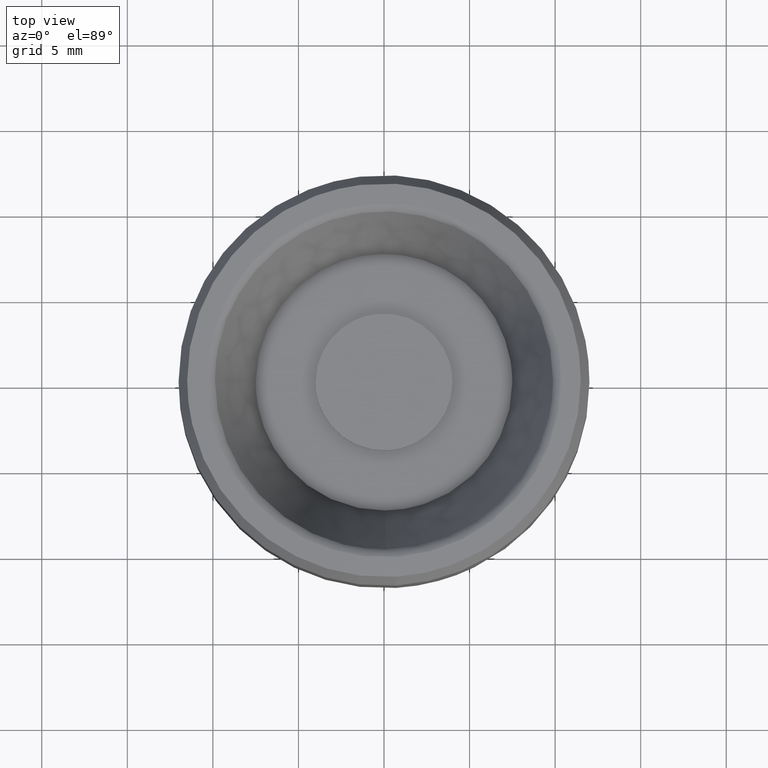
[diagram: clean part render]
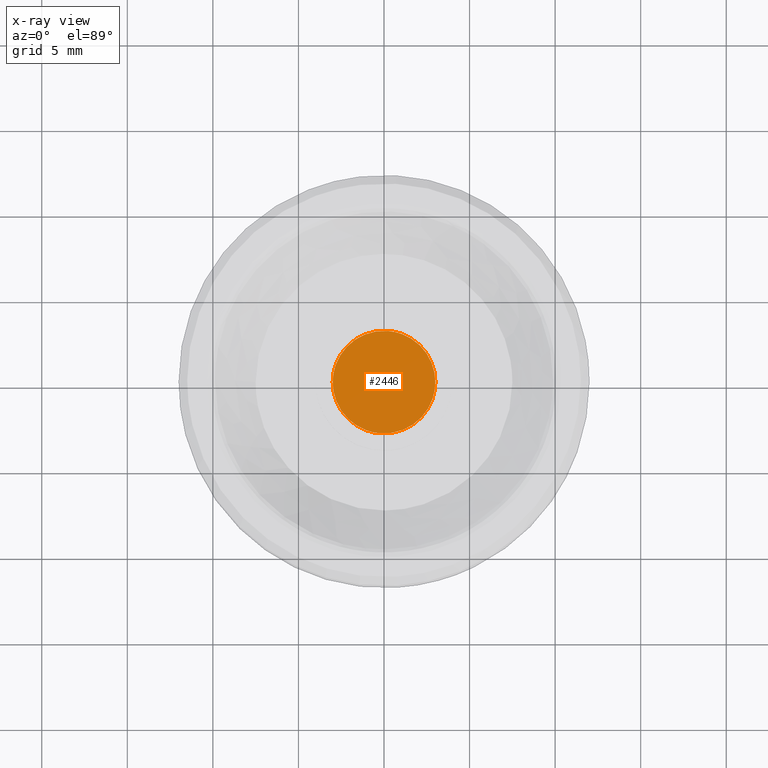
[diagram: x-ray — body ghosted, one internal face saturated and labeled with its STEP entity id]
A machine part, top view, then the same camera in x-ray: the body is ghosted and one INTERNAL B-rep face — a face not visible from any outside direction — is saturated and labeled: STEP entity #2446.
In plain terms, the highlighted face is a freeform B-spline surface patch.
Its self-contained STEP definition (entity closure, byte-faithful):
#1065=CARTESIAN_POINT('',(-3.0,0.0,9.500000000000000));
#1066=VERTEX_POINT('',#1065);
#1067=CARTESIAN_POINT('',(-0.235376409092394,-2.990752070306396,9.500000000000000));
#1068=VERTEX_POINT('',#1067);
#1069=CARTESIAN_POINT('',(-3.0,0.0,9.500000000000000));
#1070=CARTESIAN_POINT('',(-3.0,-2.773173108428491,9.500000000000000));
#1071=CARTESIAN_POINT('',(-0.235376409092394,-2.990752070306395,9.500000000000000));
#1079=(BOUNDED_CURVE()B_SPLINE_CURVE(2,(#1069,#1070,#1071),.UNSPECIFIED.,.F.,.U.)B_SPLINE_CURVE_WITH_KNOTS((3,3),(0.0,0.236331401293964),.UNSPECIFIED.)CURVE()GEOMETRIC_REPRESENTATION_ITEM()RATIONAL_B_SPLINE_CURVE((1.0,0.723120540673268,0.969723566244151))REPRESENTATION_ITEM(''));
#1080=EDGE_CURVE('',#1066,#1068,#1079,.T.);
#1121=CARTESIAN_POINT('',(0.235376409092394,2.990752070306396,9.500000000000000));
#1122=VERTEX_POINT('',#1121);
#1128=CARTESIAN_POINT('',(0.235376409092394,2.990752070306395,9.500000000000000));
#1129=CARTESIAN_POINT('',(0.117869438856954,3.000000000000000,9.500000000000000));
#1130=CARTESIAN_POINT('',(0.0,3.0,9.500000000000000));
#1131=CARTESIAN_POINT('',(-3.0,3.0,9.500000000000000));
#1132=CARTESIAN_POINT('',(-3.0,0.0,9.500000000000000));
#1140=(BOUNDED_CURVE()B_SPLINE_CURVE(2,(#1128,#1129,#1130,#1131,#1132),.UNSPECIFIED.,.F.,.U.)B_SPLINE_CURVE_WITH_KNOTS((3,2,3),(0.736331401293965,0.750000000000000,1.0),.UNSPECIFIED.)CURVE()GEOMETRIC_REPRESENTATION_ITEM()RATIONAL_B_SPLINE_CURVE((0.969723566244151,0.983986240513280,1.0,0.707106781186548,1.0))REPRESENTATION_ITEM(''));
#1141=EDGE_CURVE('',#1122,#1066,#1140,.T.);
#1164=CARTESIAN_POINT('',(3.0,0.0,9.500000000000000));
#1165=VERTEX_POINT('',#1164);
#1166=CARTESIAN_POINT('',(-0.235376409092394,-2.990752070306395,9.500000000000000));
#1167=CARTESIAN_POINT('',(-0.117869438856953,-3.0,9.500000000000000));
#1168=CARTESIAN_POINT('',(0.0,-3.0,9.500000000000000));
#1169=CARTESIAN_POINT('',(3.0,-3.0,9.500000000000000));
#1170=CARTESIAN_POINT('',(3.0,0.0,9.500000000000000));
#1178=(BOUNDED_CURVE()B_SPLINE_CURVE(2,(#1166,#1167,#1168,#1169,#1170),.UNSPECIFIED.,.F.,.U.)B_SPLINE_CURVE_WITH_KNOTS((3,2,3),(0.236331401293965,0.250000000000000,0.500000000000000),.UNSPECIFIED.)CURVE()GEOMETRIC_REPRESENTATION_ITEM()RATIONAL_B_SPLINE_CURVE((0.969723566244151,0.983986240513280,1.0,0.707106781186548,1.0))REPRESENTATION_ITEM(''));
#1179=EDGE_CURVE('',#1068,#1165,#1178,.T.);
#1181=CARTESIAN_POINT('',(3.0,0.0,9.500000000000000));
#1182=CARTESIAN_POINT('',(3.0,2.773173108428507,9.500000000000000));
#1183=CARTESIAN_POINT('',(0.235376409092394,2.990752070306396,9.500000000000000));
#1191=(BOUNDED_CURVE()B_SPLINE_CURVE(2,(#1181,#1182,#1183),.UNSPECIFIED.,.F.,.U.)B_SPLINE_CURVE_WITH_KNOTS((3,3),(0.500000000000000,0.736331401293965),.UNSPECIFIED.)CURVE()GEOMETRIC_REPRESENTATION_ITEM()RATIONAL_B_SPLINE_CURVE((1.0,0.723120540673267,0.969723566244153))REPRESENTATION_ITEM(''));
#1192=EDGE_CURVE('',#1165,#1122,#1191,.T.);
#2435=CARTESIAN_POINT('',(-3.299699988370835,3.298784258180522,9.500000000000000));
#2436=CARTESIAN_POINT('',(3.299700149303376,3.298784258180522,9.500000000000000));
#2437=CARTESIAN_POINT('',(-3.299699988370835,-3.298784419113063,9.500000000000000));
#2438=CARTESIAN_POINT('',(3.299700149303376,-3.298784419113063,9.500000000000000));
#2439=B_SPLINE_SURFACE_WITH_KNOTS('',1,1,((#2435,#2437),(#2436,#2438)),.UNSPECIFIED.,.F.,.F.,.U.,(2,2),(2,2),(0.0,6.599400137674212),(0.0,6.597568677293586),.UNSPECIFIED.);
#2440=ORIENTED_EDGE('',*,*,#1141,.F.);
#2441=ORIENTED_EDGE('',*,*,#1192,.F.);
#2442=ORIENTED_EDGE('',*,*,#1179,.F.);
#2443=ORIENTED_EDGE('',*,*,#1080,.F.);
#2444=EDGE_LOOP('',(#2440,#2441,#2442,#2443));
#2445=FACE_OUTER_BOUND('',#2444,.T.);
#2446=ADVANCED_FACE('',(#2445),#2439,.T.);